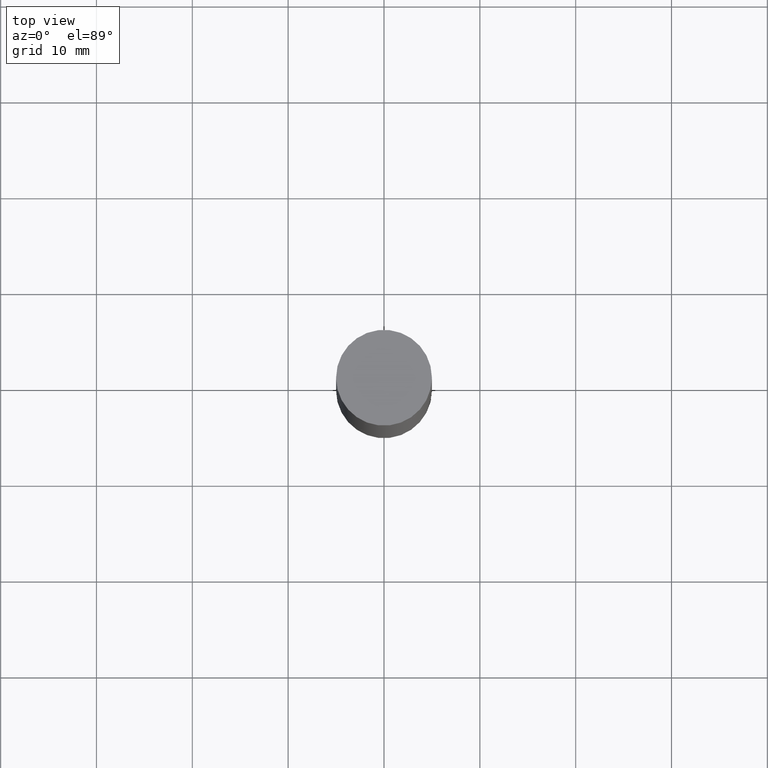
[diagram: clean part render]
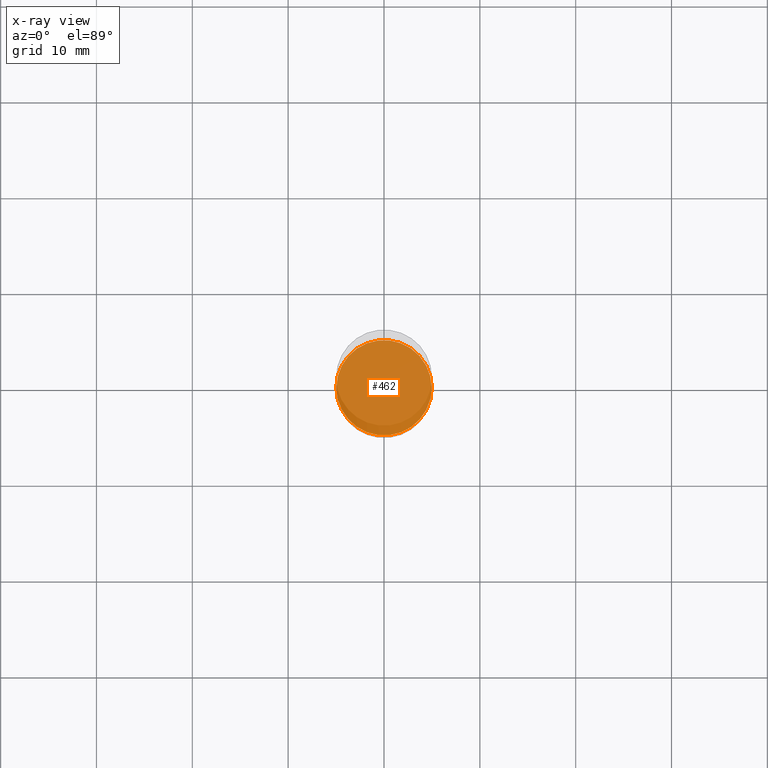
[diagram: x-ray — body ghosted, one internal face saturated and labeled with its STEP entity id]
A machine part, top view, then the same camera in x-ray: the body is ghosted and one INTERNAL B-rep face — a face not visible from any outside direction — is saturated and labeled: STEP entity #462.
In plain terms, the highlighted planar face has unit normal (-0, 0, 1).
Its self-contained STEP definition (entity closure, byte-faithful):
#3 = CIRCLE ( 'NONE', #662, 0.1958499999999999963 ) ;
#18 = CARTESIAN_POINT ( 'NONE',  ( 5.873037884934223228E-29, -8.385141583365697263E-15, -2.401599999999999735 ) ) ;
#20 = PLANE ( 'NONE',  #473 ) ;
#24 = DIRECTION ( 'NONE',  ( 1.000000000000000000, -6.982962677686262766E-15, 0.000000000000000000 ) ) ;
#30 = DIRECTION ( 'NONE',  ( -2.445468806185136597E-29, 3.491481338843145583E-15, 1.000000000000000000 ) ) ;
#53 = VERTEX_POINT ( 'NONE', #310 ) ;
#66 = DIRECTION ( 'NONE',  ( 1.000000000000000000, -6.982962677686262766E-15, 0.000000000000000000 ) ) ;
#120 = CARTESIAN_POINT ( 'NONE',  ( 5.873037884934223228E-29, -8.385141583365697263E-15, -2.401599999999999735 ) ) ;
#128 = CIRCLE ( 'NONE', #196, 0.1958499999999999963 ) ;
#196 = AXIS2_PLACEMENT_3D ( 'NONE', #331, #30, #24 ) ;
#208 = DIRECTION ( 'NONE',  ( -2.438088387897960049E-29, 3.491481338843145188E-15, 1.000000000000000000 ) ) ;
#310 = CARTESIAN_POINT ( 'NONE',  ( -0.1958499999999999963, -6.988245181031318870E-15, -2.401599999999999735 ) ) ;
#331 = CARTESIAN_POINT ( 'NONE',  ( 5.873037884934223228E-29, -8.385141583365697263E-15, -2.401599999999999735 ) ) ;
#332 = EDGE_LOOP ( 'NONE', ( #453, #341 ) ) ;
#341 = ORIENTED_EDGE ( 'NONE', *, *, #439, .F. ) ;
#373 = DIRECTION ( 'NONE',  ( 1.000000000000000000, -6.982962677686265922E-15, 4.876176775795935793E-29 ) ) ;
#396 = CARTESIAN_POINT ( 'NONE',  ( 0.1958499999999999963, -9.752754823790552857E-15, -2.401599999999999735 ) ) ;
#439 = EDGE_CURVE ( 'NONE', #53, #669, #3, .T. ) ;
#453 = ORIENTED_EDGE ( 'NONE', *, *, #525, .F. ) ;
#462 = ADVANCED_FACE ( 'NONE', ( #477 ), #20, .F. ) ;
#473 = AXIS2_PLACEMENT_3D ( 'NONE', #120, #208, #373 ) ;
#477 = FACE_OUTER_BOUND ( 'NONE', #332, .T. ) ;
#525 = EDGE_CURVE ( 'NONE', #669, #53, #128, .T. ) ;
#643 = DIRECTION ( 'NONE',  ( -2.445468806185136597E-29, 3.491481338843145583E-15, 1.000000000000000000 ) ) ;
#662 = AXIS2_PLACEMENT_3D ( 'NONE', #18, #643, #66 ) ;
#669 = VERTEX_POINT ( 'NONE', #396 ) ;